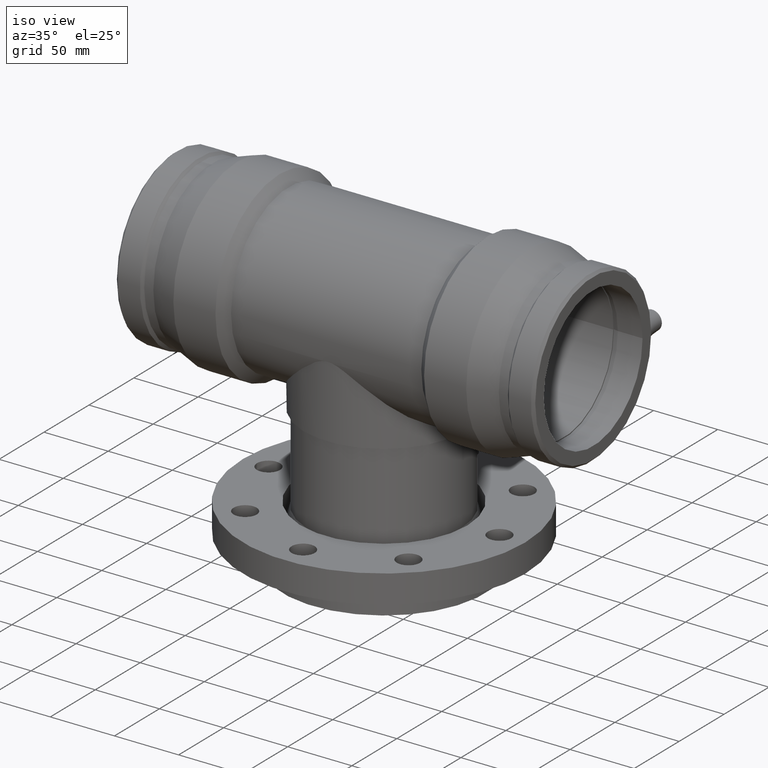
[diagram: clean part render]
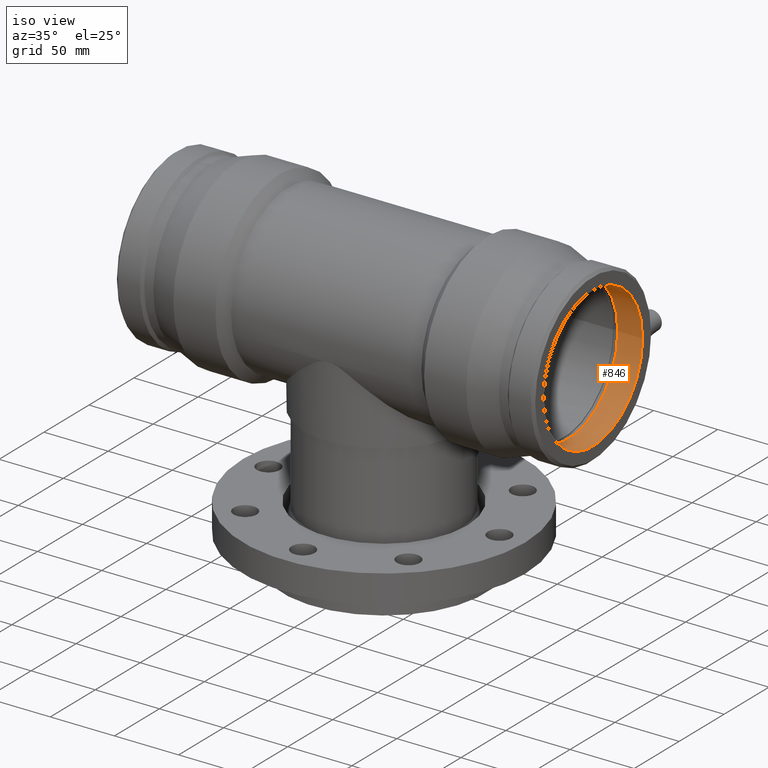
[diagram: same view with one face highlighted and labeled with its STEP entity id]
A machine part, iso view. The second image highlights one B-rep face of the part: STEP entity #846.
In plain terms, the highlighted cylindrical surface (bore or boss wall) has radius 55 mm, axis along (1, 0, 0).
Its self-contained STEP definition (entity closure, byte-faithful):
#91=FACE_BOUND('',#389,.T.);
#160=CIRCLE('',#970,55.);
#161=CIRCLE('',#972,55.);
#200=CYLINDRICAL_SURFACE('',#971,55.);
#261=FACE_OUTER_BOUND('',#388,.T.);
#388=EDGE_LOOP('',(#749));
#389=EDGE_LOOP('',(#750));
#500=VERTEX_POINT('',#1963);
#501=VERTEX_POINT('',#1966);
#588=EDGE_CURVE('',#500,#500,#160,.T.);
#589=EDGE_CURVE('',#501,#501,#161,.T.);
#749=ORIENTED_EDGE('',*,*,#588,.T.);
#750=ORIENTED_EDGE('',*,*,#589,.F.);
#846=ADVANCED_FACE('',(#261,#91),#200,.F.);
#970=AXIS2_PLACEMENT_3D('',#1964,#1219,#1220);
#971=AXIS2_PLACEMENT_3D('',#1965,#1221,#1222);
#972=AXIS2_PLACEMENT_3D('',#1967,#1223,#1224);
#1219=DIRECTION('center_axis',(1.,0.,0.));
#1220=DIRECTION('ref_axis',(0.,0.,-1.));
#1221=DIRECTION('center_axis',(1.,0.,0.));
#1222=DIRECTION('ref_axis',(0.,1.,0.));
#1223=DIRECTION('center_axis',(1.,0.,0.));
#1224=DIRECTION('ref_axis',(0.,0.,-1.));
#1963=CARTESIAN_POINT('',(163.,55.,0.));
#1964=CARTESIAN_POINT('Origin',(163.,0.,0.));
#1965=CARTESIAN_POINT('Origin',(153.347425,0.,0.));
#1966=CARTESIAN_POINT('',(143.69485,55.,0.));
#1967=CARTESIAN_POINT('Origin',(143.69485,0.,0.));